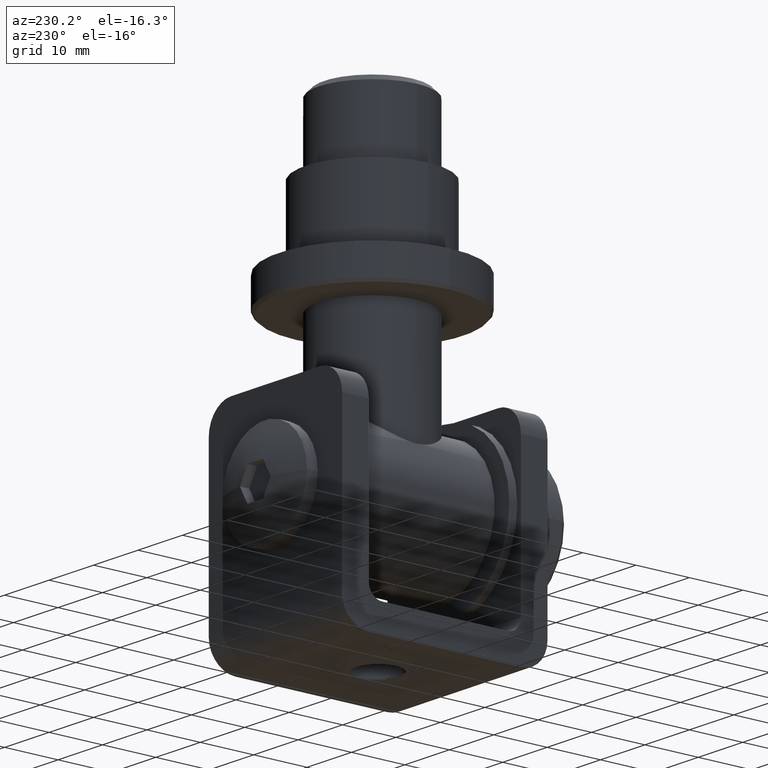
[diagram: clean part render]
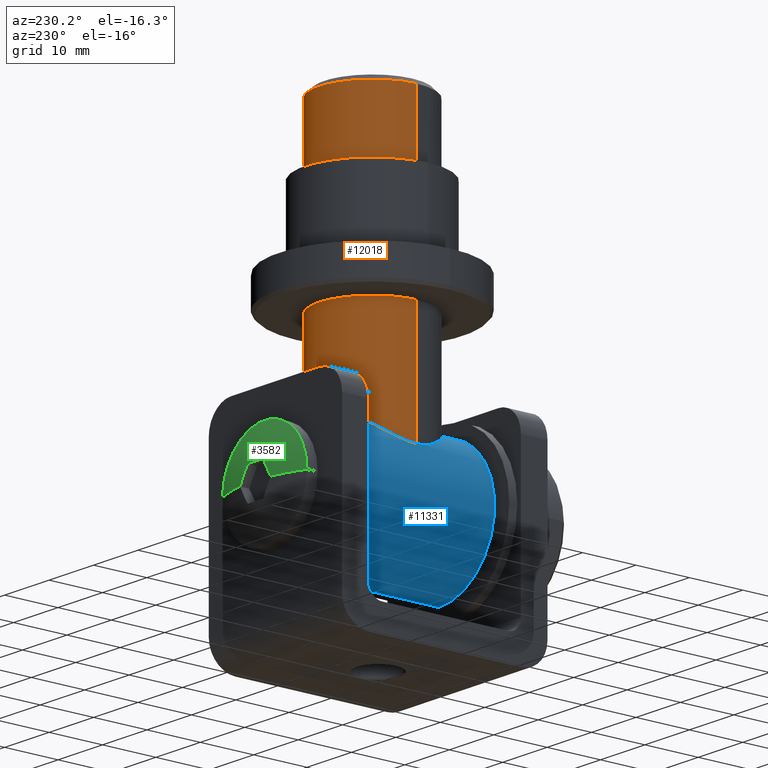
[diagram: same view with three faces highlighted in distinct colors, each labeled with its STEP entity id]
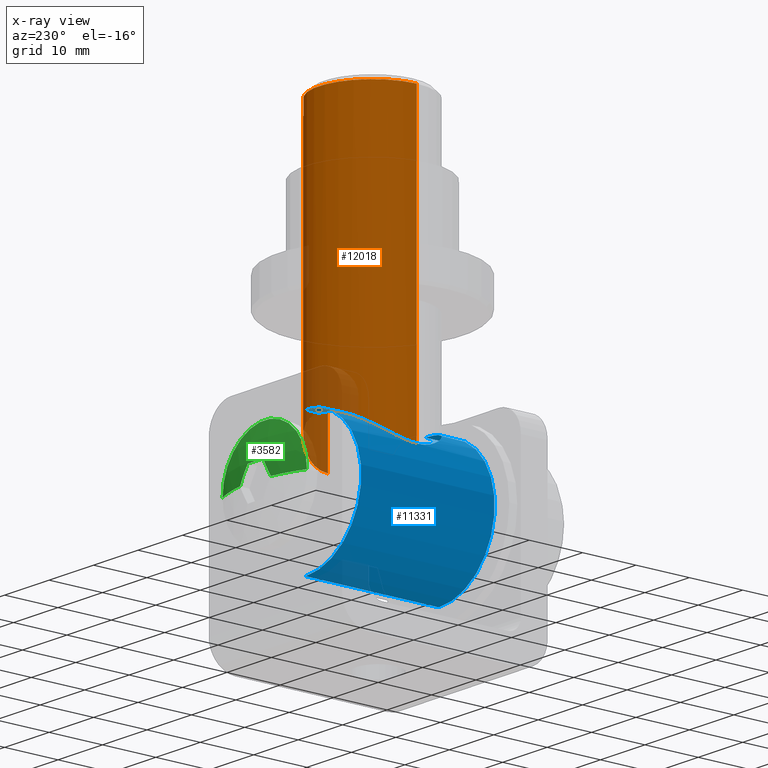
[diagram: x-ray of the same camera — body ghosted, the three highlighted faces saturated]
A machine part, auxiliary view with three faces highlighted in distinct colors.
The next image is the same camera in x-ray (body ghosted, the three faces saturated) — at least one of them is partly hidden behind the body in this view.
Their STEP definitions:

[orange] entity #12018 — the highlighted cylindrical surface (partial cylindrical patch) has radius 10 mm, axis along (0, 0, 1).
#344 = CARTESIAN_POINT ( 'NONE',  ( 0.000000000000000000, 0.000000000000000000, 74.00000000000000000 ) ) ;
#775 = CARTESIAN_POINT ( 'NONE',  ( -7.956650914223713400, 6.089278773806553247, 22.15179347717142733 ) ) ;
#825 = CARTESIAN_POINT ( 'NONE',  ( -4.282209600789541604, 9.042865674971960033, 24.24803832628728628 ) ) ;
#873 = CARTESIAN_POINT ( 'NONE',  ( 10.00000000000000000, 0.000000000000000000, 20.00000000000000000 ) ) ;
#929 = CARTESIAN_POINT ( 'NONE',  ( -5.147271761914093524, 8.579703146609173103, 23.89520514025268483 ) ) ;
#983 = CARTESIAN_POINT ( 'NONE',  ( 2.723073452193843558, 9.628011472339469634, 24.70428494443080325 ) ) ;
#1117 = CARTESIAN_POINT ( 'NONE',  ( 10.00000000000000000, 0.000000000000000000, 74.00000000000000000 ) ) ;
#2189 = CARTESIAN_POINT ( 'NONE',  ( 7.569191219374786783, 6.564512729620842535, 22.46183100323861837 ) ) ;
#3147 = CARTESIAN_POINT ( 'NONE',  ( -6.207950307587161376, 7.865667606001373713, 23.36549712823392255 ) ) ;
#3163 = VECTOR ( 'NONE', #12268, 1000.000000000000000 ) ;
#3347 = CARTESIAN_POINT ( 'NONE',  ( 7.957434547902002997, 6.087969933651600662, 22.15105028284047961 ) ) ;
#3348 = CARTESIAN_POINT ( 'NONE',  ( -4.579077667423066877, 8.895940669240150811, 24.13516886405808037 ) ) ;
#3567 = CARTESIAN_POINT ( 'NONE',  ( -10.00000000000000000, 1.224646799147353256E-15, 74.00000000000000000 ) ) ;
#3907 = LINE ( 'NONE', #8118, #10137 ) ;
#4131 = CARTESIAN_POINT ( 'NONE',  ( 1.530805629502818164E-15, 10.00000000000000000, 25.00000000000000000 ) ) ;
#4289 = CARTESIAN_POINT ( 'NONE',  ( 1.387111486062197141, 9.909492649581652657, 24.92769351742932216 ) ) ;
#4401 = CARTESIAN_POINT ( 'NONE',  ( -9.436854395797162454, 3.324589210911384818, 20.69872125517425232 ) ) ;
#4451 = CARTESIAN_POINT ( 'NONE',  ( -9.909881546138970876, 1.382875126804151922, 20.11890648998535269 ) ) ;
#4482 = CIRCLE ( 'NONE', #7112, 10.00000000000000000 ) ;
#4505 = CARTESIAN_POINT ( 'NONE',  ( -5.420175762590779378, 8.409728781596715663, 23.76759128735623605 ) ) ;
#4552 = CARTESIAN_POINT ( 'NONE',  ( 9.437504737664273335, 3.322645157292072327, 20.69796325221192745 ) ) ;
#4790 = VERTEX_POINT ( 'NONE', #4131 ) ;
#5325 = VERTEX_POINT ( 'NONE', #12719 ) ;
#5535 = CARTESIAN_POINT ( 'NONE',  ( 0.3454553765157889478, 10.00000000000000000, 25.00000000000000000 ) ) ;
#5757 = CARTESIAN_POINT ( 'NONE',  ( -8.477035059094873759, 5.313829038072586108, 21.68932692753243074 ) ) ;
#5864 = CARTESIAN_POINT ( 'NONE',  ( 3.682483057596396048, 9.303228489903007770, 24.44960261485472586 ) ) ;
#5865 = CARTESIAN_POINT ( 'NONE',  ( -9.719511093146238068, 2.375721902109384942, 20.36087379239257089 ) ) ;
#5974 = EDGE_CURVE ( 'NONE', #5325, #4790, #6627, .T. ) ;
#6236 = ORIENTED_EDGE ( 'NONE', *, *, #9915, .F. ) ;
#6326 = VERTEX_POINT ( 'NONE', #1117 ) ;
#6553 = B_SPLINE_CURVE_WITH_KNOTS ( 'NONE', 3,
 ( #8357, #14525, #15618, #9397, #10799, #8149, #13283, #825, #3348, #929, #4505, #3147, #14581, #13228, #775, #5757, #13334, #9495, #14476, #10702, #4401, #9599, #5865, #11899, #4451, #7116, #11843, #13117 ),
 .UNSPECIFIED., .F., .F.,
 ( 4, 2, 2, 2, 2, 2, 2, 2, 2, 2, 2, 2, 2, 4 ),
 ( 0.01659904330892860921, 0.01763450923094874584, 0.01866997515296887900, 0.02074090699700915225, 0.02177637291902928540, 0.02281183884104941856, 0.02488277068508967793, 0.02695370252912993730, 0.02798916845115007046, 0.02902463437317020015, 0.03006010029519033677, 0.03109556621721046993, 0.03213103213923060308, 0.03316649806125073624 ),
 .UNSPECIFIED. ) ;
#6627 = B_SPLINE_CURVE_WITH_KNOTS ( 'NONE', 3,
 ( #873, #11732, #11787, #7167, #9550, #4552, #12059, #8032, #10798, #3347, #2189, #10912, #15454, #13333, #15893, #5864, #15842, #983, #11682, #14205, #4289, #13008, #5535, #6789 ),
 .UNSPECIFIED., .F., .F.,
 ( 4, 2, 2, 2, 2, 2, 2, 2, 2, 2, 2, 4 ),
 ( 4.844028597227373642E-19, 0.002074880413616077453, 0.003112320620424116179, 0.004149760827232154906, 0.006224641240848232358, 0.008299521654464308076, 0.01037440206808038466, 0.01244928248169646298, 0.01348672268850449781, 0.01452416289531253436, 0.01556160310212057266, 0.01659904330892860921 ),
 .UNSPECIFIED. ) ;
#6789 = CARTESIAN_POINT ( 'NONE',  ( 1.530805629502818164E-15, 10.00000000000000000, 25.00000000000000000 ) ) ;
#7112 = AXIS2_PLACEMENT_3D ( 'NONE', #344, #9139, #12913 ) ;
#7116 = CARTESIAN_POINT ( 'NONE',  ( -9.981435950455049166, 0.6993084024968939660, 20.02492024732555009 ) ) ;
#7167 = CARTESIAN_POINT ( 'NONE',  ( 9.719234144359649719, 2.377178788300486456, 20.36122626231776422 ) ) ;
#7408 = CYLINDRICAL_SURFACE ( 'NONE', #16092, 10.00000000000000000 ) ;
#8032 = CARTESIAN_POINT ( 'NONE',  ( 8.951847947429470764, 4.502166159178699445, 21.23212675860363419 ) ) ;
#8118 = CARTESIAN_POINT ( 'NONE',  ( -10.00000000000000000, 1.224646799147353256E-15, -0.002000000000002000178 ) ) ;
#8149 = CARTESIAN_POINT ( 'NONE',  ( -2.726615497011311007, 9.645597959197189653, 24.71802727721026116 ) ) ;
#8357 = CARTESIAN_POINT ( 'NONE',  ( 1.530805629502818164E-15, 10.00000000000000000, 25.00000000000000000 ) ) ;
#8377 = CARTESIAN_POINT ( 'NONE',  ( -10.00000000000000000, 1.224646752378375875E-15, 20.00000000000000000 ) ) ;
#8706 = ORIENTED_EDGE ( 'NONE', *, *, #11687, .T. ) ;
#9139 = DIRECTION ( 'NONE',  ( 0.000000000000000000, 0.000000000000000000, -1.000000000000000000 ) ) ;
#9289 = DIRECTION ( 'NONE',  ( 0.000000000000000000, 0.000000000000000000, 1.000000000000000000 ) ) ;
#9342 = DIRECTION ( 'NONE',  ( 1.000000000000000000, 0.000000000000000000, 0.000000000000000000 ) ) ;
#9357 = FACE_OUTER_BOUND ( 'NONE', #13660, .T. ) ;
#9397 = CARTESIAN_POINT ( 'NONE',  ( -1.373981006075704725, 9.911149883165400354, 24.92901582474815925 ) ) ;
#9495 = CARTESIAN_POINT ( 'NONE',  ( -8.939030902401206902, 4.493560847518615731, 21.24002171256612570 ) ) ;
#9550 = CARTESIAN_POINT ( 'NONE',  ( 9.634030491815906316, 2.700356087162105734, 20.46608772490073491 ) ) ;
#9599 = CARTESIAN_POINT ( 'NONE',  ( -9.634043190826625747, 2.700430726027177375, 20.46608202975648183 ) ) ;
#9915 = EDGE_CURVE ( 'NONE', #5325, #6326, #11333, .T. ) ;
#10137 = VECTOR ( 'NONE', #10567, 1000.000000000000000 ) ;
#10238 = ORIENTED_EDGE ( 'NONE', *, *, #5974, .T. ) ;
#10502 = CARTESIAN_POINT ( 'NONE',  ( 0.000000000000000000, 0.000000000000000000, -0.002000000000002000178 ) ) ;
#10567 = DIRECTION ( 'NONE',  ( 0.000000000000000000, 0.000000000000000000, 1.000000000000000000 ) ) ;
#10702 = CARTESIAN_POINT ( 'NONE',  ( -9.324960612423719652, 3.625742219517625209, 20.82639831616795334 ) ) ;
#10798 = CARTESIAN_POINT ( 'NONE',  ( 8.648300243115254915, 5.058759274972748798, 21.53716985847848520 ) ) ;
#10799 = CARTESIAN_POINT ( 'NONE',  ( -1.718068494999227980, 9.857293678350256272, 24.88605652741380680 ) ) ;
#10912 = CARTESIAN_POINT ( 'NONE',  ( 6.699044042564479717, 7.450388715268204010, 23.06662394373566727 ) ) ;
#11333 = LINE ( 'NONE', #13424, #3163 ) ;
#11552 = ORIENTED_EDGE ( 'NONE', *, *, #12212, .T. ) ;
#11682 = CARTESIAN_POINT ( 'NONE',  ( 2.395610777198511787, 9.714810907818456798, 24.77296698170294320 ) ) ;
#11687 = EDGE_CURVE ( 'NONE', #11780, #15132, #3907, .T. ) ;
#11732 = CARTESIAN_POINT ( 'NONE',  ( 10.00000000000000355, 0.7030596604559825602, 20.00000000000000000 ) ) ;
#11780 = VERTEX_POINT ( 'NONE', #8377 ) ;
#11787 = CARTESIAN_POINT ( 'NONE',  ( 9.926920043240116343, 1.383554781295781355, 20.09972507766442718 ) ) ;
#11843 = CARTESIAN_POINT ( 'NONE',  ( -10.00000000000000178, 0.3472330657352513117, 20.00000000000000355 ) ) ;
#11899 = CARTESIAN_POINT ( 'NONE',  ( -9.857086242895690020, 1.717789639644974109, 20.18765786633573711 ) ) ;
#12018 = ADVANCED_FACE ( 'NONE', ( #9357 ), #7408, .T. ) ;
#12059 = CARTESIAN_POINT ( 'NONE',  ( 9.325757397163652485, 3.623743840137605421, 20.82551222567129301 ) ) ;
#12212 = EDGE_CURVE ( 'NONE', #4790, #11780, #6553, .T. ) ;
#12268 = DIRECTION ( 'NONE',  ( 0.000000000000000000, 0.000000000000000000, 1.000000000000000000 ) ) ;
#12719 = CARTESIAN_POINT ( 'NONE',  ( 10.00000000000000000, 0.000000000000000000, 20.00000000000000000 ) ) ;
#12913 = DIRECTION ( 'NONE',  ( 1.000000000000000000, 0.000000000000000000, 0.000000000000000000 ) ) ;
#13008 = CARTESIAN_POINT ( 'NONE',  ( 0.6919766096477870665, 9.982148627353671699, 24.98570433774645849 ) ) ;
#13061 = EDGE_CURVE ( 'NONE', #15132, #6326, #4482, .T. ) ;
#13117 = CARTESIAN_POINT ( 'NONE',  ( -10.00000000000000000, 1.224646752378375875E-15, 20.00000000000000000 ) ) ;
#13228 = CARTESIAN_POINT ( 'NONE',  ( -7.566956979504847247, 6.567213005747821519, 22.46359561591110321 ) ) ;
#13283 = CARTESIAN_POINT ( 'NONE',  ( -3.366227991353606175, 9.439886854880620959, 24.55543045412580838 ) ) ;
#13333 = CARTESIAN_POINT ( 'NONE',  ( 5.161940476440245007, 8.588457131234875419, 23.89964080605220076 ) ) ;
#13334 = CARTESIAN_POINT ( 'NONE',  ( -8.639878475789126711, 5.044884784415963885, 21.53585928032342167 ) ) ;
#13424 = CARTESIAN_POINT ( 'NONE',  ( 10.00000000000000000, 0.000000000000000000, -0.002000000000002000178 ) ) ;
#13660 = EDGE_LOOP ( 'NONE', ( #11552, #8706, #15891, #6236, #10238 ) ) ;
#14205 = CARTESIAN_POINT ( 'NONE',  ( 1.727627791032168236, 9.855546874027407256, 24.88466679993667441 ) ) ;
#14476 = CARTESIAN_POINT ( 'NONE',  ( -9.076056210422910553, 4.210237609789968083, 21.09703454732979466 ) ) ;
#14525 = CARTESIAN_POINT ( 'NONE',  ( -0.3447979629219443676, 10.00000000000000000, 25.00000000000000000 ) ) ;
#14581 = CARTESIAN_POINT ( 'NONE',  ( -6.694531967191276856, 7.454553395931547755, 23.06954669166725580 ) ) ;
#15132 = VERTEX_POINT ( 'NONE', #3567 ) ;
#15454 = CARTESIAN_POINT ( 'NONE',  ( 6.211755165912529186, 7.862653695548997845, 23.36331154612080852 ) ) ;
#15618 = CARTESIAN_POINT ( 'NONE',  ( -0.6885519244696257646, 9.982214787257152722, 24.98575806365822416 ) ) ;
#15842 = CARTESIAN_POINT ( 'NONE',  ( 3.365547648660978552, 9.422675997939009562, 24.54295599325580213 ) ) ;
#15891 = ORIENTED_EDGE ( 'NONE', *, *, #13061, .T. ) ;
#15893 = CARTESIAN_POINT ( 'NONE',  ( 4.598010520176412541, 8.905125854004372954, 24.14143615479020966 ) ) ;
#16092 = AXIS2_PLACEMENT_3D ( 'NONE', #10502, #9289, #9342 ) ;

[blue] entity #11331 — the highlighted cylindrical surface (partial cylindrical patch) has radius 12.5 mm, axis along (-0, -1, -0).
#47 = CYLINDRICAL_SURFACE ( 'NONE', #13691, 12.50000000000000000 ) ;
#361 = VERTEX_POINT ( 'NONE', #11200 ) ;
#365 = ORIENTED_EDGE ( 'NONE', *, *, #10305, .F. ) ;
#775 = CARTESIAN_POINT ( 'NONE',  ( -7.956650914223713400, 6.089278773806553247, 22.15179347717142733 ) ) ;
#825 = CARTESIAN_POINT ( 'NONE',  ( -4.282209600789541604, 9.042865674971960033, 24.24803832628728628 ) ) ;
#929 = CARTESIAN_POINT ( 'NONE',  ( -5.147271761914093524, 8.579703146609173103, 23.89520514025268483 ) ) ;
#986 = DIRECTION ( 'NONE',  ( -0.000000000000000000, -1.000000000000000000, -0.000000000000000000 ) ) ;
#1075 = DIRECTION ( 'NONE',  ( 0.000000000000000000, 0.000000000000000000, -1.000000000000000000 ) ) ;
#1109 = CARTESIAN_POINT ( 'NONE',  ( -0.6928604096063170070, -9.982095253257000422, 24.98566160000257241 ) ) ;
#1468 = CARTESIAN_POINT ( 'NONE',  ( 1.530816689004543226E-15, -10.00000000000000000, 25.00000000000000000 ) ) ;
#1626 = LINE ( 'NONE', #6086, #12499 ) ;
#2098 = CARTESIAN_POINT ( 'NONE',  ( -9.910846157608808937, -1.375898488367102379, 20.11764848231311831 ) ) ;
#2443 = EDGE_CURVE ( 'NONE', #6814, #10828, #1626, .T. ) ;
#2835 = EDGE_CURVE ( 'NONE', #15961, #361, #11498, .T. ) ;
#3147 = CARTESIAN_POINT ( 'NONE',  ( -6.207950307587161376, 7.865667606001373713, 23.36549712823392255 ) ) ;
#3348 = CARTESIAN_POINT ( 'NONE',  ( -4.579077667423066877, 8.895940669240150811, 24.13516886405808037 ) ) ;
#3430 = CARTESIAN_POINT ( 'NONE',  ( 0.000000000000000000, 12.50000000000000000, 0.000000000000000000 ) ) ;
#3438 = EDGE_CURVE ( 'NONE', #11013, #4790, #10124, .T. ) ;
#3478 = CARTESIAN_POINT ( 'NONE',  ( -1.730530109998883459, -9.855062542011518545, 24.88428080200935000 ) ) ;
#4131 = CARTESIAN_POINT ( 'NONE',  ( 1.530805629502818164E-15, 10.00000000000000000, 25.00000000000000000 ) ) ;
#4292 = ORIENTED_EDGE ( 'NONE', *, *, #4311, .F. ) ;
#4311 = EDGE_CURVE ( 'NONE', #15961, #11013, #11501, .T. ) ;
#4401 = CARTESIAN_POINT ( 'NONE',  ( -9.436854395797162454, 3.324589210911384818, 20.69872125517425232 ) ) ;
#4451 = CARTESIAN_POINT ( 'NONE',  ( -9.909881546138970876, 1.382875126804151922, 20.11890648998535269 ) ) ;
#4505 = CARTESIAN_POINT ( 'NONE',  ( -5.420175762590779378, 8.409728781596715663, 23.76759128735623605 ) ) ;
#4683 = CARTESIAN_POINT ( 'NONE',  ( -1.388437716728532889, -9.909314905636083637, 24.92755172363986205 ) ) ;
#4699 = EDGE_CURVE ( 'NONE', #361, #10828, #12088, .T. ) ;
#4736 = CARTESIAN_POINT ( 'NONE',  ( -4.604719382695524388, -8.901715038007912639, 24.13882029594657652 ) ) ;
#4790 = VERTEX_POINT ( 'NONE', #4131 ) ;
#4792 = CARTESIAN_POINT ( 'NONE',  ( -2.727846221239849989, -9.626676430304485166, 24.70323070375169650 ) ) ;
#5757 = CARTESIAN_POINT ( 'NONE',  ( -8.477035059094873759, 5.313829038072586108, 21.68932692753243074 ) ) ;
#5776 = CARTESIAN_POINT ( 'NONE',  ( -9.649686741694331715, -2.709257908122892466, 20.44877604185795761 ) ) ;
#5865 = CARTESIAN_POINT ( 'NONE',  ( -9.719511093146238068, 2.375721902109384942, 20.36087379239257089 ) ) ;
#5886 = CARTESIAN_POINT ( 'NONE',  ( -8.636506845668662891, -5.050665638852388284, 21.53908890856249769 ) ) ;
#6086 = CARTESIAN_POINT ( 'NONE',  ( 1.530808498934191521E-15, 12.50000000000000000, 25.00000000000000000 ) ) ;
#6110 = CARTESIAN_POINT ( 'NONE',  ( -5.166256970493795286, -8.585519514466732005, 23.89746500543920504 ) ) ;
#6522 = CARTESIAN_POINT ( 'NONE',  ( 0.000000000000000000, -12.50000000000000000, 12.50000000000000000 ) ) ;
#6536 = AXIS2_PLACEMENT_3D ( 'NONE', #6522, #11515, #9006 ) ;
#6553 = B_SPLINE_CURVE_WITH_KNOTS ( 'NONE', 3,
 ( #8357, #14525, #15618, #9397, #10799, #8149, #13283, #825, #3348, #929, #4505, #3147, #14581, #13228, #775, #5757, #13334, #9495, #14476, #10702, #4401, #9599, #5865, #11899, #4451, #7116, #11843, #13117 ),
 .UNSPECIFIED., .F., .F.,
 ( 4, 2, 2, 2, 2, 2, 2, 2, 2, 2, 2, 2, 2, 4 ),
 ( 0.01659904330892860921, 0.01763450923094874584, 0.01866997515296887900, 0.02074090699700915225, 0.02177637291902928540, 0.02281183884104941856, 0.02488277068508967793, 0.02695370252912993730, 0.02798916845115007046, 0.02902463437317020015, 0.03006010029519033677, 0.03109556621721046993, 0.03213103213923060308, 0.03316649806125073624 ),
 .UNSPECIFIED. ) ;
#6814 = VERTEX_POINT ( 'NONE', #1468 ) ;
#7026 = CARTESIAN_POINT ( 'NONE',  ( -9.075434753051094816, -4.211777729324645669, 21.09772278848301141 ) ) ;
#7077 = CARTESIAN_POINT ( 'NONE',  ( -8.936187659190773402, -4.499224823288162867, 21.24293594348636205 ) ) ;
#7116 = CARTESIAN_POINT ( 'NONE',  ( -9.981435950455049166, 0.6993084024968939660, 20.02492024732555009 ) ) ;
#7137 = CARTESIAN_POINT ( 'NONE',  ( -7.958693523206850529, -6.086161819726027211, 22.14995395482630514 ) ) ;
#7214 = VECTOR ( 'NONE', #986, 1000.000000000000000 ) ;
#7237 = CARTESIAN_POINT ( 'NONE',  ( 1.530816689004543226E-15, -10.00000000000000000, 25.00000000000000000 ) ) ;
#7464 = DIRECTION ( 'NONE',  ( -0.000000000000000000, -1.000000000000000000, -0.000000000000000000 ) ) ;
#8149 = CARTESIAN_POINT ( 'NONE',  ( -2.726615497011311007, 9.645597959197189653, 24.71802727721026116 ) ) ;
#8357 = CARTESIAN_POINT ( 'NONE',  ( 1.530805629502818164E-15, 10.00000000000000000, 25.00000000000000000 ) ) ;
#8377 = CARTESIAN_POINT ( 'NONE',  ( -10.00000000000000000, 1.224646752378375875E-15, 20.00000000000000000 ) ) ;
#8536 = CARTESIAN_POINT ( 'NONE',  ( -5.947890897914527741, -8.045056430574108575, 23.49809978020531887 ) ) ;
#9006 = DIRECTION ( 'NONE',  ( 0.000000000000000000, 0.000000000000000000, 1.000000000000000000 ) ) ;
#9196 = CARTESIAN_POINT ( 'NONE',  ( 0.000000000000000000, 12.50000000000000000, 12.50000000000000000 ) ) ;
#9397 = CARTESIAN_POINT ( 'NONE',  ( -1.373981006075704725, 9.911149883165400354, 24.92901582474815925 ) ) ;
#9455 = ORIENTED_EDGE ( 'NONE', *, *, #2443, .F. ) ;
#9495 = CARTESIAN_POINT ( 'NONE',  ( -8.939030902401206902, 4.493560847518615731, 21.24002171256612570 ) ) ;
#9599 = CARTESIAN_POINT ( 'NONE',  ( -9.634043190826625747, 2.700430726027177375, 20.46608202975648183 ) ) ;
#9701 = DIRECTION ( 'NONE',  ( -0.000000000000000000, -1.000000000000000000, -0.000000000000000000 ) ) ;
#9879 = CARTESIAN_POINT ( 'NONE',  ( 1.530808498934191521E-15, -12.50000000000000000, 25.00000000000000000 ) ) ;
#9905 = ORIENTED_EDGE ( 'NONE', *, *, #4699, .T. ) ;
#10124 = LINE ( 'NONE', #14639, #7214 ) ;
#10305 = EDGE_CURVE ( 'NONE', #11780, #6814, #13653, .T. ) ;
#10403 = DIRECTION ( 'NONE',  ( 0.000000000000000000, 0.000000000000000000, 1.000000000000000000 ) ) ;
#10598 = EDGE_LOOP ( 'NONE', ( #10758, #4292, #13253, #9905, #9455, #365, #14018 ) ) ;
#10667 = CARTESIAN_POINT ( 'NONE',  ( -10.00000000000000000, -0.3479648885121082724, 20.00000000000000000 ) ) ;
#10702 = CARTESIAN_POINT ( 'NONE',  ( -9.324960612423719652, 3.625742219517625209, 20.82639831616795334 ) ) ;
#10758 = ORIENTED_EDGE ( 'NONE', *, *, #3438, .F. ) ;
#10799 = CARTESIAN_POINT ( 'NONE',  ( -1.718068494999227980, 9.857293678350256272, 24.88605652741380680 ) ) ;
#10828 = VERTEX_POINT ( 'NONE', #9879 ) ;
#10946 = CARTESIAN_POINT ( 'NONE',  ( 0.000000000000000000, 12.50000000000000000, 0.000000000000000000 ) ) ;
#10989 = CARTESIAN_POINT ( 'NONE',  ( -3.371084488437768201, -9.420713002333030772, 24.54141910189720832 ) ) ;
#10995 = DIRECTION ( 'NONE',  ( -0.000000000000000000, -1.000000000000000000, -0.000000000000000000 ) ) ;
#11013 = VERTEX_POINT ( 'NONE', #13668 ) ;
#11200 = CARTESIAN_POINT ( 'NONE',  ( 0.000000000000000000, -12.50000000000000000, 0.000000000000000000 ) ) ;
#11331 = ADVANCED_FACE ( 'NONE', ( #15825 ), #47, .T. ) ;
#11498 = LINE ( 'NONE', #3430, #13869 ) ;
#11501 = CIRCLE ( 'NONE', #14673, 12.50000000000000000 ) ;
#11515 = DIRECTION ( 'NONE',  ( 0.000000000000000000, 1.000000000000000000, 0.000000000000000000 ) ) ;
#11780 = VERTEX_POINT ( 'NONE', #8377 ) ;
#11843 = CARTESIAN_POINT ( 'NONE',  ( -10.00000000000000178, 0.3472330657352513117, 20.00000000000000355 ) ) ;
#11899 = CARTESIAN_POINT ( 'NONE',  ( -9.857086242895690020, 1.717789639644974109, 20.18765786633573711 ) ) ;
#11918 = CARTESIAN_POINT ( 'NONE',  ( -9.857243672795044986, -1.717230424704705882, 20.18746517840918386 ) ) ;
#12079 = CARTESIAN_POINT ( 'NONE',  ( -9.981893644933592213, -0.6926524895749753830, 20.02430988337872364 ) ) ;
#12088 = CIRCLE ( 'NONE', #6536, 12.50000000000000000 ) ;
#12129 = CARTESIAN_POINT ( 'NONE',  ( -6.198202050476251834, -7.853736832385309619, 23.35868740919299924 ) ) ;
#12212 = EDGE_CURVE ( 'NONE', #4790, #11780, #6553, .T. ) ;
#12246 = CARTESIAN_POINT ( 'NONE',  ( -3.688424563718022853, -9.300887970542307315, 24.44777882522266665 ) ) ;
#12499 = VECTOR ( 'NONE', #9701, 1000.000000000000000 ) ;
#12868 = DIRECTION ( 'NONE',  ( 0.000000000000000000, 1.000000000000000000, 0.000000000000000000 ) ) ;
#13117 = CARTESIAN_POINT ( 'NONE',  ( -10.00000000000000000, 1.224646752378375875E-15, 20.00000000000000000 ) ) ;
#13194 = CARTESIAN_POINT ( 'NONE',  ( -8.475462799190543350, -5.316208462108455990, 21.69073630462695235 ) ) ;
#13228 = CARTESIAN_POINT ( 'NONE',  ( -7.566956979504847247, 6.567213005747821519, 22.46359561591110321 ) ) ;
#13247 = CARTESIAN_POINT ( 'NONE',  ( -10.00000000000000000, 1.224646752378375875E-15, 20.00000000000000000 ) ) ;
#13253 = ORIENTED_EDGE ( 'NONE', *, *, #2835, .T. ) ;
#13283 = CARTESIAN_POINT ( 'NONE',  ( -3.366227991353606175, 9.439886854880620959, 24.55543045412580838 ) ) ;
#13334 = CARTESIAN_POINT ( 'NONE',  ( -8.639878475789126711, 5.044884784415963885, 21.53585928032342167 ) ) ;
#13354 = CARTESIAN_POINT ( 'NONE',  ( -9.451818680261043326, -3.327682981889797720, 20.68843917077114014 ) ) ;
#13408 = CARTESIAN_POINT ( 'NONE',  ( -0.3459862878855337054, -10.00000000000000000, 25.00000000000000355 ) ) ;
#13516 = CARTESIAN_POINT ( 'NONE',  ( -2.399865314285571039, -9.713786009680276834, 24.77215514560988652 ) ) ;
#13653 = B_SPLINE_CURVE_WITH_KNOTS ( 'NONE', 3,
 ( #13247, #10667, #12079, #2098, #11918, #5776, #13354, #7026, #7077, #5886, #13194, #7137, #16024, #14818, #14870, #12129, #8536, #6110, #4736, #12246, #10989, #4792, #13516, #3478, #4683, #1109, #13408, #7237 ),
 .UNSPECIFIED., .F., .F.,
 ( 4, 2, 2, 2, 2, 2, 2, 2, 2, 2, 2, 2, 2, 4 ),
 ( 0.03316649806125073624, 0.03420414631445177489, 0.03524179456765281354, 0.03731709107405489778, 0.03835473932725594337, 0.03939238758045698202, 0.04146768408685907320, 0.04250533234006012573, 0.04354298059326117132, 0.04561827709966326944, 0.04665592535286432196, 0.04769357360606536755, 0.04873122185926641314, 0.04976887011246745873 ),
 .UNSPECIFIED. ) ;
#13668 = CARTESIAN_POINT ( 'NONE',  ( 1.530808498934191521E-15, 12.50000000000000000, 25.00000000000000000 ) ) ;
#13691 = AXIS2_PLACEMENT_3D ( 'NONE', #15990, #7464, #1075 ) ;
#13869 = VECTOR ( 'NONE', #10995, 1000.000000000000000 ) ;
#14018 = ORIENTED_EDGE ( 'NONE', *, *, #12212, .F. ) ;
#14476 = CARTESIAN_POINT ( 'NONE',  ( -9.076056210422910553, 4.210237609789968083, 21.09703454732979466 ) ) ;
#14525 = CARTESIAN_POINT ( 'NONE',  ( -0.3447979629219443676, 10.00000000000000000, 25.00000000000000000 ) ) ;
#14581 = CARTESIAN_POINT ( 'NONE',  ( -6.694531967191276856, 7.454553395931547755, 23.06954669166725580 ) ) ;
#14639 = CARTESIAN_POINT ( 'NONE',  ( 1.530808498934191521E-15, 12.50000000000000000, 25.00000000000000000 ) ) ;
#14673 = AXIS2_PLACEMENT_3D ( 'NONE', #9196, #12868, #10403 ) ;
#14818 = CARTESIAN_POINT ( 'NONE',  ( -6.911406404652162827, -7.233978837620640867, 22.91891830531925933 ) ) ;
#14870 = CARTESIAN_POINT ( 'NONE',  ( -6.679418956903527160, -7.448775287861184147, 23.06949210261554128 ) ) ;
#15618 = CARTESIAN_POINT ( 'NONE',  ( -0.6885519244696257646, 9.982214787257152722, 24.98575806365822416 ) ) ;
#15825 = FACE_OUTER_BOUND ( 'NONE', #10598, .T. ) ;
#15961 = VERTEX_POINT ( 'NONE', #10946 ) ;
#15990 = CARTESIAN_POINT ( 'NONE',  ( 0.000000000000000000, 12.50000000000000000, 12.50000000000000000 ) ) ;
#16024 = CARTESIAN_POINT ( 'NONE',  ( -7.569781726641084063, -6.564324631266461374, 22.46162603111286060 ) ) ;

[green] entity #3582 — the highlighted spherical surface has radius 23.5625 mm.
#135 = CARTESIAN_POINT ( 'NONE',  ( -1.732050807568877859, 18.74396704779598011, 3.000000000000000000 ) ) ;
#390 = VERTEX_POINT ( 'NONE', #2482 ) ;
#762 = DIRECTION ( 'NONE',  ( 1.000000000000000000, 0.000000000000000000, 0.000000000000000000 ) ) ;
#818 = CARTESIAN_POINT ( 'NONE',  ( -9.499999999999996447, 16.99999999999999289, 1.163414459189984894E-15 ) ) ;
#1407 = CARTESIAN_POINT ( 'NONE',  ( 9.499999999999994671, 16.99999999999999289, 0.000000000000000000 ) ) ;
#1526 = EDGE_CURVE ( 'NONE', #10310, #13636, #14276, .T. ) ;
#2120 = ORIENTED_EDGE ( 'NONE', *, *, #9246, .F. ) ;
#2234 = CARTESIAN_POINT ( 'NONE',  ( -2.598076211353316456, -4.562499999999983125, 1.500000000000001332 ) ) ;
#2381 = CARTESIAN_POINT ( 'NONE',  ( 1.020731822104737683E-15, -4.562499999999983125, 0.000000000000000000 ) ) ;
#2482 = CARTESIAN_POINT ( 'NONE',  ( 3.464101615137753054, 18.74396704779598011, -8.673617379884035472E-16 ) ) ;
#2741 = ORIENTED_EDGE ( 'NONE', *, *, #1526, .T. ) ;
#3528 = CARTESIAN_POINT ( 'NONE',  ( -3.464101615137755719, 18.74396704779598011, 0.000000000000000000 ) ) ;
#3582 = ADVANCED_FACE ( 'NONE', ( #5473 ), #12680, .T. ) ;
#3583 = ORIENTED_EDGE ( 'NONE', *, *, #12186, .F. ) ;
#3704 = DIRECTION ( 'NONE',  ( 1.000000000000000000, 0.000000000000000000, -1.224646799147353207E-16 ) ) ;
#3881 = CIRCLE ( 'NONE', #10870, 9.499999999999996447 ) ;
#4197 = ORIENTED_EDGE ( 'NONE', *, *, #13661, .F. ) ;
#4464 = VERTEX_POINT ( 'NONE', #11533 ) ;
#4709 = DIRECTION ( 'NONE',  ( 0.5000000000000001110, -7.088611844384195741E-15, 0.8660254037844385966 ) ) ;
#5473 = FACE_OUTER_BOUND ( 'NONE', #14174, .T. ) ;
#5745 = DIRECTION ( 'NONE',  ( 1.000000000000000000, -7.088611844384195741E-15, 0.000000000000000000 ) ) ;
#5801 = DIRECTION ( 'NONE',  ( 9.998512966023779340E-17, -1.000000000000000000, -0.000000000000000000 ) ) ;
#6172 = DIRECTION ( 'NONE',  ( 1.224646799147353207E-16, 1.224464690007432993E-32, 1.000000000000000000 ) ) ;
#6720 = ORIENTED_EDGE ( 'NONE', *, *, #13784, .F. ) ;
#7217 = DIRECTION ( 'NONE',  ( 1.000000000000000000, 1.104333247306191195E-16, 0.000000000000000000 ) ) ;
#7251 = VERTEX_POINT ( 'NONE', #135 ) ;
#7378 = DIRECTION ( 'NONE',  ( 0.000000000000000000, -0.000000000000000000, 1.000000000000000000 ) ) ;
#8015 = VERTEX_POINT ( 'NONE', #1407 ) ;
#8308 = DIRECTION ( 'NONE',  ( -0.8660254037844388186, -0.000000000000000000, -0.4999999999999997780 ) ) ;
#8553 = EDGE_CURVE ( 'NONE', #7251, #4464, #13589, .T. ) ;
#8697 = DIRECTION ( 'NONE',  ( 0.000000000000000000, 0.000000000000000000, -1.000000000000000000 ) ) ;
#8749 = CARTESIAN_POINT ( 'NONE',  ( 1.020731822104737683E-15, -4.562499999999983125, 0.000000000000000000 ) ) ;
#8846 = DIRECTION ( 'NONE',  ( -1.000000000000000000, 0.000000000000000000, 0.000000000000000000 ) ) ;
#9246 = EDGE_CURVE ( 'NONE', #390, #8015, #10229, .T. ) ;
#9332 = CARTESIAN_POINT ( 'NONE',  ( 1.020731822104737683E-15, -4.562499999999983125, 3.000000000000000000 ) ) ;
#9457 = ORIENTED_EDGE ( 'NONE', *, *, #8553, .F. ) ;
#9552 = DIRECTION ( 'NONE',  ( 0.4999999999999997780, -7.088611844384195741E-15, -0.8660254037844387076 ) ) ;
#9925 = CARTESIAN_POINT ( 'NONE',  ( 1.020731822104737683E-15, -4.562499999999983125, 0.000000000000000000 ) ) ;
#10229 = CIRCLE ( 'NONE', #15661, 23.56249999999997868 ) ;
#10310 = VERTEX_POINT ( 'NONE', #3528 ) ;
#10329 = CIRCLE ( 'NONE', #10451, 23.37073824786027387 ) ;
#10451 = AXIS2_PLACEMENT_3D ( 'NONE', #15789, #8308, #9552 ) ;
#10870 = AXIS2_PLACEMENT_3D ( 'NONE', #13275, #5801, #762 ) ;
#10908 = DIRECTION ( 'NONE',  ( 0.8660254037844385966, -0.000000000000000000, -0.5000000000000001110 ) ) ;
#11280 = CIRCLE ( 'NONE', #14538, 23.37073824786027387 ) ;
#11533 = CARTESIAN_POINT ( 'NONE',  ( 1.732050807568876527, 18.74396704779598011, 3.000000000000000000 ) ) ;
#11840 = AXIS2_PLACEMENT_3D ( 'NONE', #9925, #7378, #7217 ) ;
#12186 = EDGE_CURVE ( 'NONE', #4464, #390, #10329, .T. ) ;
#12680 = SPHERICAL_SURFACE ( 'NONE', #11840, 23.56249999999997868 ) ;
#13105 = DIRECTION ( 'NONE',  ( 0.000000000000000000, -0.000000000000000000, -1.000000000000000000 ) ) ;
#13275 = CARTESIAN_POINT ( 'NONE',  ( -1.699747204224042463E-15, 16.99999999999999645, 0.000000000000000000 ) ) ;
#13589 = CIRCLE ( 'NONE', #14394, 23.37073824786027387 ) ;
#13636 = VERTEX_POINT ( 'NONE', #818 ) ;
#13661 = EDGE_CURVE ( 'NONE', #8015, #13636, #3881, .T. ) ;
#13784 = EDGE_CURVE ( 'NONE', #10310, #7251, #11280, .T. ) ;
#13934 = AXIS2_PLACEMENT_3D ( 'NONE', #2381, #6172, #3704 ) ;
#14174 = EDGE_LOOP ( 'NONE', ( #6720, #2741, #4197, #2120, #3583, #9457 ) ) ;
#14276 = CIRCLE ( 'NONE', #13934, 23.56249999999997868 ) ;
#14394 = AXIS2_PLACEMENT_3D ( 'NONE', #9332, #13105, #5745 ) ;
#14538 = AXIS2_PLACEMENT_3D ( 'NONE', #2234, #10908, #4709 ) ;
#15661 = AXIS2_PLACEMENT_3D ( 'NONE', #8749, #8697, #8846 ) ;
#15789 = CARTESIAN_POINT ( 'NONE',  ( 2.598076211353315568, -4.562499999999983125, 1.499999999999998224 ) ) ;